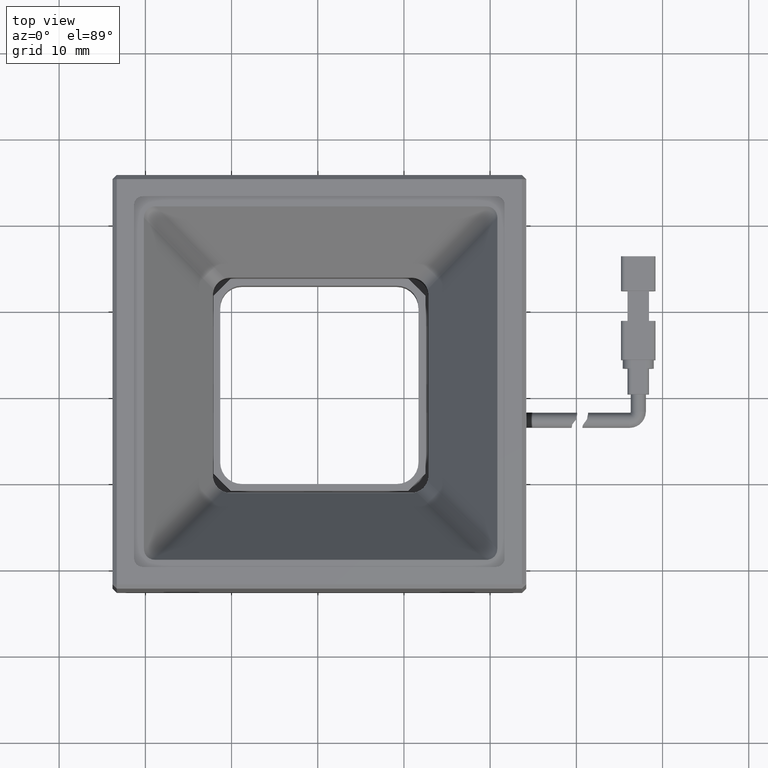
[diagram: clean part render]
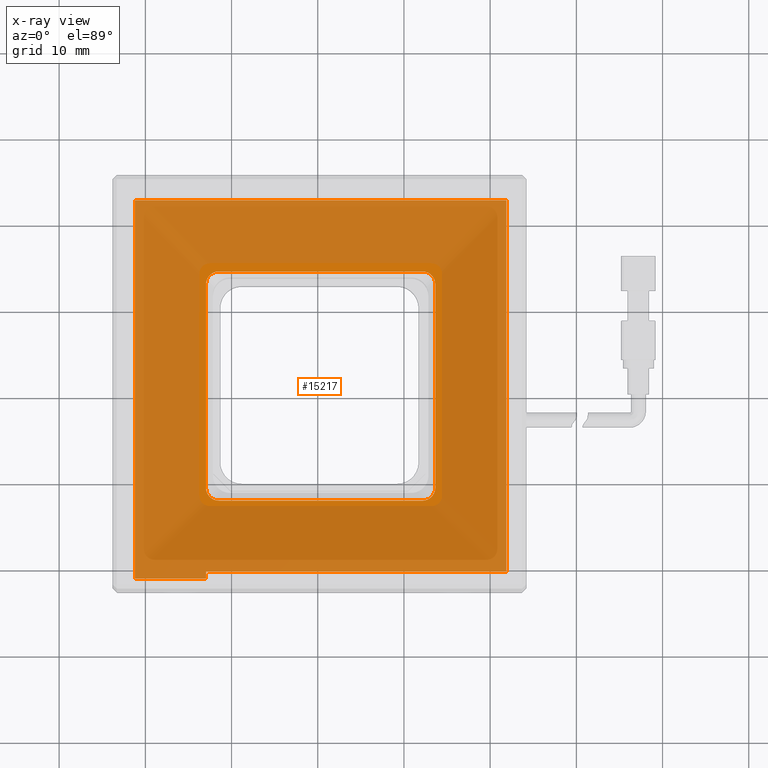
[diagram: x-ray — body ghosted, one internal face saturated and labeled with its STEP entity id]
A machine part, top view, then the same camera in x-ray: the body is ghosted and one INTERNAL B-rep face — a face not visible from any outside direction — is saturated and labeled: STEP entity #15217.
In plain terms, the highlighted planar face has unit normal (0, 0, -1).
Its self-contained STEP definition (entity closure, byte-faithful):
#81 = EDGE_CURVE ( 'NONE', #28290, #6149, #12838, .T. ) ;
#111 = CARTESIAN_POINT ( 'NONE',  ( 1.885725414519333400, -20.29390667125564500, 9.400000000007276300 ) ) ;
#254 = VERTEX_POINT ( 'NONE', #15557 ) ;
#277 = CARTESIAN_POINT ( 'NONE',  ( 1.885725414519333400, -12.04390667125564800, 9.400000000007276300 ) ) ;
#291 = CIRCLE ( 'NONE', #16190, 1.499999999999999600 ) ;
#618 = DIRECTION ( 'NONE',  ( -1.000000000000000000, 0.0000000000000000000, -0.0000000000000000000 ) ) ;
#788 = CIRCLE ( 'NONE', #22245, 1.500000000000001300 ) ;
#1704 = VERTEX_POINT ( 'NONE', #11364 ) ;
#1800 = VERTEX_POINT ( 'NONE', #2547 ) ;
#1900 = DIRECTION ( 'NONE',  ( -1.000000000000000000, 0.0000000000000000000, 0.0000000000000000000 ) ) ;
#2515 = DIRECTION ( 'NONE',  ( 0.0000000000000000000, 0.0000000000000000000, -1.000000000000000000 ) ) ;
#2547 = CARTESIAN_POINT ( 'NONE',  ( -32.96427458548065200, -21.09390667125562800, 9.400000000007276300 ) ) ;
#3306 = EDGE_CURVE ( 'NONE', #19503, #19110, #5665, .T. ) ;
#3466 = CARTESIAN_POINT ( 'NONE',  ( 1.885725414519333400, 14.55609332874438200, 9.400000000007276300 ) ) ;
#3593 = DIRECTION ( 'NONE',  ( -0.0000000000000000000, -0.0000000000000000000, 1.000000000000000000 ) ) ;
#3662 = CARTESIAN_POINT ( 'NONE',  ( 1.885725414519333400, -20.29390667125564500, 9.400000000007276300 ) ) ;
#3845 = CARTESIAN_POINT ( 'NONE',  ( -31.46427458548065200, -12.04390667125564800, 9.400000000007276300 ) ) ;
#3942 = DIRECTION ( 'NONE',  ( 1.000000000000000000, -0.0000000000000000000, 0.0000000000000000000 ) ) ;
#4092 = DIRECTION ( 'NONE',  ( 0.0000000000000000000, 1.000000000000000000, 0.0000000000000000000 ) ) ;
#4272 = EDGE_CURVE ( 'NONE', #1704, #21523, #15176, .T. ) ;
#4311 = ORIENTED_EDGE ( 'NONE', *, *, #22163, .T. ) ;
#4339 = ORIENTED_EDGE ( 'NONE', *, *, #12226, .T. ) ;
#4798 = DIRECTION ( 'NONE',  ( -0.0000000000000000000, -1.000000000000000000, -0.0000000000000000000 ) ) ;
#5230 = CARTESIAN_POINT ( 'NONE',  ( -6.364274585480666600, 13.05609332874438000, 9.400000000007276300 ) ) ;
#5387 = EDGE_CURVE ( 'NONE', #10884, #19159, #291, .T. ) ;
#5665 = LINE ( 'NONE', #277, #23109 ) ;
#5744 = CARTESIAN_POINT ( 'NONE',  ( -41.21427458548066600, -21.09390667125562800, 9.400000000007276300 ) ) ;
#6027 = ORIENTED_EDGE ( 'NONE', *, *, #11848, .T. ) ;
#6149 = VERTEX_POINT ( 'NONE', #17426 ) ;
#6964 = PLANE ( 'NONE',  #19482 ) ;
#7553 = CARTESIAN_POINT ( 'NONE',  ( -31.46427458548065200, 13.05609332874438200, 9.400000000007276300 ) ) ;
#8371 = VECTOR ( 'NONE', #618, 1000.000000000000000 ) ;
#8410 = EDGE_CURVE ( 'NONE', #254, #10884, #8992, .T. ) ;
#8765 = LINE ( 'NONE', #11776, #14104 ) ;
#8992 = LINE ( 'NONE', #28906, #20409 ) ;
#9046 = CARTESIAN_POINT ( 'NONE',  ( -32.96427458548065200, -20.29390667125563400, 9.400000000007276300 ) ) ;
#9079 = LINE ( 'NONE', #27889, #8371 ) ;
#9299 = DIRECTION ( 'NONE',  ( 2.120217581749430800E-016, -1.000000000000000000, -0.0000000000000000000 ) ) ;
#9819 = DIRECTION ( 'NONE',  ( -1.000000000000000000, 2.312964634635740700E-015, 0.0000000000000000000 ) ) ;
#10170 = LINE ( 'NONE', #27397, #27621 ) ;
#10640 = VECTOR ( 'NONE', #21713, 1000.000000000000000 ) ;
#10884 = VERTEX_POINT ( 'NONE', #5230 ) ;
#11364 = CARTESIAN_POINT ( 'NONE',  ( -32.96427458548065200, 13.05609332874438000, 9.400000000007276300 ) ) ;
#11662 = EDGE_CURVE ( 'NONE', #28422, #22747, #19644, .T. ) ;
#11694 = VERTEX_POINT ( 'NONE', #18292 ) ;
#11736 = ORIENTED_EDGE ( 'NONE', *, *, #81, .T. ) ;
#11776 = CARTESIAN_POINT ( 'NONE',  ( 1.885725414519340300, -20.29390667125564500, 9.400000000007276300 ) ) ;
#11848 = EDGE_CURVE ( 'NONE', #11694, #1704, #12460, .T. ) ;
#12009 = DIRECTION ( 'NONE',  ( -0.0000000000000000000, -0.0000000000000000000, 1.000000000000000000 ) ) ;
#12226 = EDGE_CURVE ( 'NONE', #21091, #28290, #22771, .T. ) ;
#12460 = CIRCLE ( 'NONE', #22734, 1.500000000000001300 ) ;
#12817 = EDGE_CURVE ( 'NONE', #19159, #11694, #14843, .T. ) ;
#12838 = LINE ( 'NONE', #15250, #18189 ) ;
#14104 = VECTOR ( 'NONE', #16396, 1000.000000000000000 ) ;
#14293 = CARTESIAN_POINT ( 'NONE',  ( -7.864274585480664800, 14.55609332874438200, 9.400000000007276300 ) ) ;
#14466 = VECTOR ( 'NONE', #4798, 1000.000000000000000 ) ;
#14558 = EDGE_LOOP ( 'NONE', ( #11736, #19973, #28167, #18182, #19627, #4339 ) ) ;
#14843 = LINE ( 'NONE', #3466, #20923 ) ;
#15176 = LINE ( 'NONE', #20703, #14466 ) ;
#15217 = ADVANCED_FACE ( 'NONE', ( #28326, #16959 ), #6964, .T. ) ;
#15250 = CARTESIAN_POINT ( 'NONE',  ( 1.885725414519333400, 22.80609332874438200, 9.400000000007276300 ) ) ;
#15320 = EDGE_CURVE ( 'NONE', #1800, #21091, #9079, .T. ) ;
#15533 = DIRECTION ( 'NONE',  ( -0.0000000000000000000, -0.0000000000000000000, 1.000000000000000000 ) ) ;
#15557 = CARTESIAN_POINT ( 'NONE',  ( -6.364274585480666600, -10.54390667125565000, 9.400000000007276300 ) ) ;
#16145 = CARTESIAN_POINT ( 'NONE',  ( 1.885725414519333400, -20.29390667125564500, 9.400000000007276300 ) ) ;
#16186 = CARTESIAN_POINT ( 'NONE',  ( -7.864274585480664800, -12.04390667125564800, 9.400000000007276300 ) ) ;
#16190 = AXIS2_PLACEMENT_3D ( 'NONE', #29145, #15533, #1900 ) ;
#16396 = DIRECTION ( 'NONE',  ( -0.0000000000000000000, -1.000000000000000000, -0.0000000000000000000 ) ) ;
#16959 = FACE_OUTER_BOUND ( 'NONE', #14558, .T. ) ;
#17209 = CARTESIAN_POINT ( 'NONE',  ( -7.864274585480664800, -10.54390667125565000, 9.400000000007276300 ) ) ;
#17426 = CARTESIAN_POINT ( 'NONE',  ( 1.885725414519340300, 22.80609332874438200, 9.400000000007276300 ) ) ;
#18182 = ORIENTED_EDGE ( 'NONE', *, *, #21329, .T. ) ;
#18189 = VECTOR ( 'NONE', #3942, 1000.000000000000000 ) ;
#18292 = CARTESIAN_POINT ( 'NONE',  ( -31.46427458548065200, 14.55609332874438200, 9.400000000007276300 ) ) ;
#18419 = DIRECTION ( 'NONE',  ( -1.000000000000000000, 0.0000000000000000000, -0.0000000000000000000 ) ) ;
#18554 = EDGE_CURVE ( 'NONE', #21523, #19503, #788, .T. ) ;
#18676 = CIRCLE ( 'NONE', #22808, 1.499999999999999600 ) ;
#19110 = VERTEX_POINT ( 'NONE', #16186 ) ;
#19159 = VERTEX_POINT ( 'NONE', #14293 ) ;
#19221 = ORIENTED_EDGE ( 'NONE', *, *, #18554, .T. ) ;
#19482 = AXIS2_PLACEMENT_3D ( 'NONE', #16145, #2515, #18419 ) ;
#19499 = DIRECTION ( 'NONE',  ( -1.000000000000000000, 0.0000000000000000000, 0.0000000000000000000 ) ) ;
#19503 = VERTEX_POINT ( 'NONE', #3845 ) ;
#19627 = ORIENTED_EDGE ( 'NONE', *, *, #15320, .T. ) ;
#19644 = LINE ( 'NONE', #111, #20357 ) ;
#19913 = ORIENTED_EDGE ( 'NONE', *, *, #12817, .T. ) ;
#19973 = ORIENTED_EDGE ( 'NONE', *, *, #23511, .T. ) ;
#20357 = VECTOR ( 'NONE', #22794, 1000.000000000000000 ) ;
#20409 = VECTOR ( 'NONE', #4092, 1000.000000000000000 ) ;
#20703 = CARTESIAN_POINT ( 'NONE',  ( -32.96427458548065200, -20.29390667125564500, 9.400000000007276300 ) ) ;
#20731 = EDGE_LOOP ( 'NONE', ( #24192, #21672, #19913, #6027, #21001, #19221, #22780, #4311 ) ) ;
#20923 = VECTOR ( 'NONE', #28698, 1000.000000000000000 ) ;
#21001 = ORIENTED_EDGE ( 'NONE', *, *, #4272, .T. ) ;
#21091 = VERTEX_POINT ( 'NONE', #5744 ) ;
#21329 = EDGE_CURVE ( 'NONE', #22747, #1800, #10170, .T. ) ;
#21523 = VERTEX_POINT ( 'NONE', #28206 ) ;
#21606 = CARTESIAN_POINT ( 'NONE',  ( -41.21427458548066600, -20.29390667125564500, 9.400000000007276300 ) ) ;
#21672 = ORIENTED_EDGE ( 'NONE', *, *, #5387, .T. ) ;
#21713 = DIRECTION ( 'NONE',  ( 0.0000000000000000000, 1.000000000000000000, 0.0000000000000000000 ) ) ;
#22163 = EDGE_CURVE ( 'NONE', #19110, #254, #18676, .T. ) ;
#22245 = AXIS2_PLACEMENT_3D ( 'NONE', #25636, #12009, #27964 ) ;
#22734 = AXIS2_PLACEMENT_3D ( 'NONE', #7553, #23475, #9819 ) ;
#22747 = VERTEX_POINT ( 'NONE', #9046 ) ;
#22771 = LINE ( 'NONE', #21606, #10640 ) ;
#22780 = ORIENTED_EDGE ( 'NONE', *, *, #3306, .T. ) ;
#22794 = DIRECTION ( 'NONE',  ( -1.000000000000000000, 0.0000000000000000000, -0.0000000000000000000 ) ) ;
#22808 = AXIS2_PLACEMENT_3D ( 'NONE', #17209, #3593, #19499 ) ;
#23109 = VECTOR ( 'NONE', #27527, 1000.000000000000000 ) ;
#23475 = DIRECTION ( 'NONE',  ( -0.0000000000000000000, -0.0000000000000000000, 1.000000000000000000 ) ) ;
#23511 = EDGE_CURVE ( 'NONE', #6149, #28422, #8765, .T. ) ;
#24192 = ORIENTED_EDGE ( 'NONE', *, *, #8410, .T. ) ;
#25636 = CARTESIAN_POINT ( 'NONE',  ( -31.46427458548065200, -10.54390667125564800, 9.400000000007276300 ) ) ;
#27397 = CARTESIAN_POINT ( 'NONE',  ( -32.96427458548065200, -16.09390667125562800, 9.400000000007276300 ) ) ;
#27527 = DIRECTION ( 'NONE',  ( 1.000000000000000000, -0.0000000000000000000, 0.0000000000000000000 ) ) ;
#27621 = VECTOR ( 'NONE', #9299, 1000.000000000000000 ) ;
#27889 = CARTESIAN_POINT ( 'NONE',  ( 1.885725414519333400, -21.09390667125563100, 9.400000000007276300 ) ) ;
#27964 = DIRECTION ( 'NONE',  ( -1.000000000000000000, 0.0000000000000000000, 0.0000000000000000000 ) ) ;
#28167 = ORIENTED_EDGE ( 'NONE', *, *, #11662, .T. ) ;
#28206 = CARTESIAN_POINT ( 'NONE',  ( -32.96427458548065200, -10.54390667125564800, 9.400000000007276300 ) ) ;
#28230 = CARTESIAN_POINT ( 'NONE',  ( -41.21427458548065900, 22.80609332874438200, 9.400000000007276300 ) ) ;
#28290 = VERTEX_POINT ( 'NONE', #28230 ) ;
#28326 = FACE_BOUND ( 'NONE', #20731, .T. ) ;
#28422 = VERTEX_POINT ( 'NONE', #3662 ) ;
#28698 = DIRECTION ( 'NONE',  ( -1.000000000000000000, 0.0000000000000000000, -0.0000000000000000000 ) ) ;
#28906 = CARTESIAN_POINT ( 'NONE',  ( -6.364274585480666600, -20.29390667125564500, 9.400000000007276300 ) ) ;
#29145 = CARTESIAN_POINT ( 'NONE',  ( -7.864274585480664800, 13.05609332874438200, 9.400000000007276300 ) ) ;